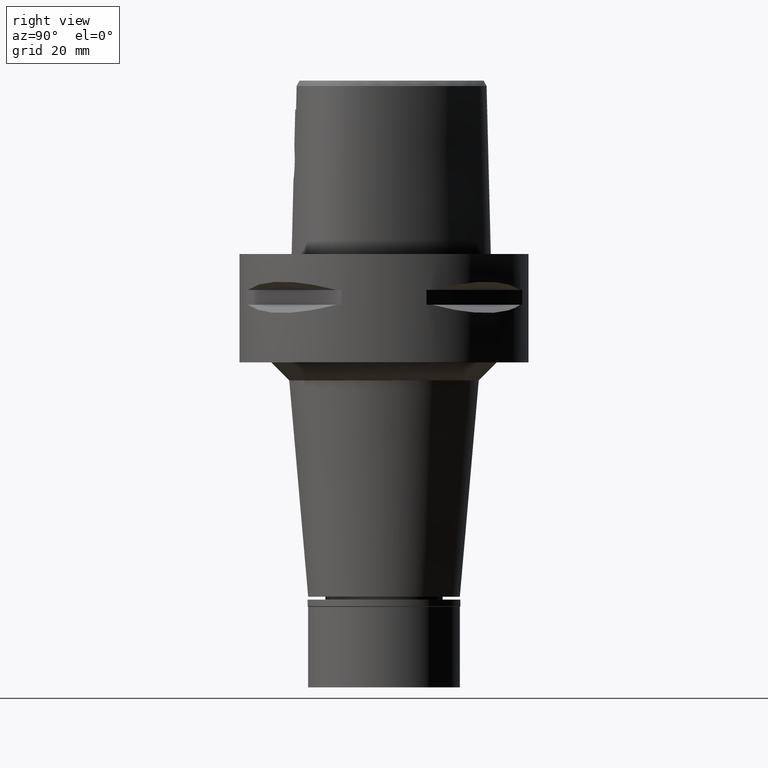
[diagram: clean part render]
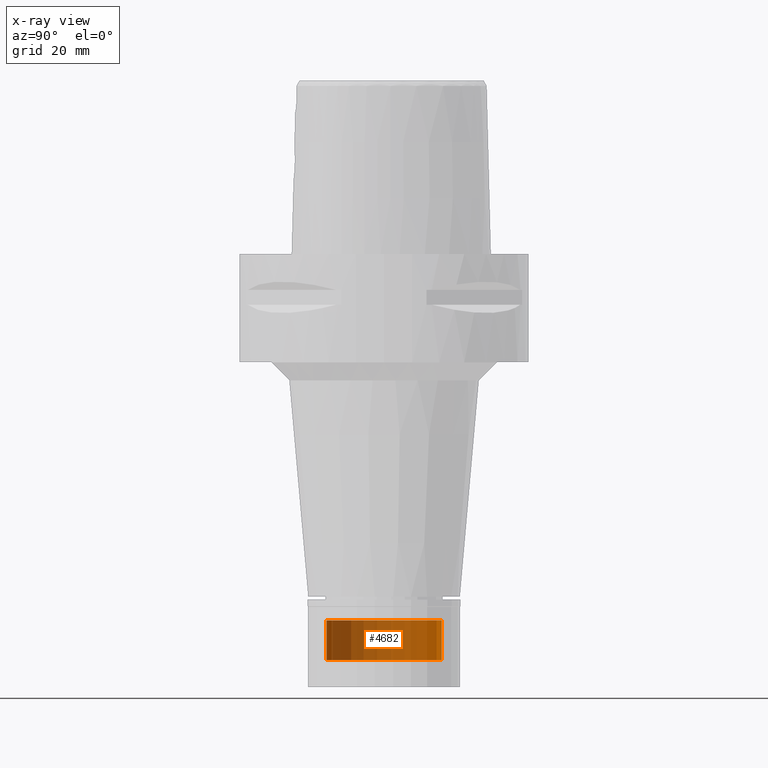
[diagram: x-ray — body ghosted, one internal face saturated and labeled with its STEP entity id]
A machine part, right view, then the same camera in x-ray: the body is ghosted and one INTERNAL B-rep face — a face not visible from any outside direction — is saturated and labeled: STEP entity #4682.
In plain terms, the highlighted cylindrical surface (partial cylindrical patch) has radius 16 mm, axis along (0, 0, -1).
Its self-contained STEP definition (entity closure, byte-faithful):
#69 = DIRECTION ( 'NONE',  ( 0.0000000000000000000, 1.000000000000000000, 0.0000000000000000000 ) ) ;
#88 = CARTESIAN_POINT ( 'NONE',  ( 0.0000000000000000000, 16.00000000000000000, -101.5000000000000000 ) ) ;
#223 = DIRECTION ( 'NONE',  ( 0.0000000000000000000, 0.0000000000000000000, -1.000000000000000000 ) ) ;
#253 = DIRECTION ( 'NONE',  ( 0.0000000000000000000, -1.000000000000000000, 0.0000000000000000000 ) ) ;
#389 = CARTESIAN_POINT ( 'NONE',  ( 0.0000000000000000000, -16.00000000000000000, -101.5000000000000000 ) ) ;
#452 = VERTEX_POINT ( 'NONE', #701 ) ;
#578 = EDGE_CURVE ( 'NONE', #3506, #4273, #1266, .T. ) ;
#579 = EDGE_CURVE ( 'NONE', #3506, #452, #4788, .T. ) ;
#586 = CARTESIAN_POINT ( 'NONE',  ( 0.0000000000000000000, 16.00000000000000000, -101.5000000000000000 ) ) ;
#701 = CARTESIAN_POINT ( 'NONE',  ( 0.0000000000000000000, -16.00000000000000000, -112.5000000000000000 ) ) ;
#772 = ORIENTED_EDGE ( 'NONE', *, *, #578, .T. ) ;
#893 = EDGE_CURVE ( 'NONE', #4273, #1788, #2064, .T. ) ;
#1086 = AXIS2_PLACEMENT_3D ( 'NONE', #1212, #1623, #69 ) ;
#1212 = CARTESIAN_POINT ( 'NONE',  ( 0.0000000000000000000, 1.293533181598999990E-14, -112.5000000000000000 ) ) ;
#1266 = CIRCLE ( 'NONE', #1343, 16.00000000000000000 ) ;
#1343 = AXIS2_PLACEMENT_3D ( 'NONE', #3799, #223, #253 ) ;
#1368 = DIRECTION ( 'NONE',  ( 0.0000000000000000000, -1.000000000000000000, 0.0000000000000000000 ) ) ;
#1400 = ORIENTED_EDGE ( 'NONE', *, *, #4967, .T. ) ;
#1517 = DIRECTION ( 'NONE',  ( 0.0000000000000000000, 0.0000000000000000000, -1.000000000000000000 ) ) ;
#1623 = DIRECTION ( 'NONE',  ( 0.0000000000000000000, 0.0000000000000000000, 1.000000000000000000 ) ) ;
#1733 = DIRECTION ( 'NONE',  ( 0.0000000000000000000, 0.0000000000000000000, -1.000000000000000000 ) ) ;
#1784 = ORIENTED_EDGE ( 'NONE', *, *, #579, .F. ) ;
#1788 = VERTEX_POINT ( 'NONE', #2143 ) ;
#2064 = LINE ( 'NONE', #88, #3596 ) ;
#2143 = CARTESIAN_POINT ( 'NONE',  ( 0.0000000000000000000, 16.00000000000000000, -112.5000000000000000 ) ) ;
#2595 = CARTESIAN_POINT ( 'NONE',  ( 0.0000000000000000000, -16.00000000000000000, -101.5000000000000000 ) ) ;
#2603 = CYLINDRICAL_SURFACE ( 'NONE', #4573, 16.00000000000000000 ) ;
#2934 = DIRECTION ( 'NONE',  ( 0.0000000000000000000, 0.0000000000000000000, -1.000000000000000000 ) ) ;
#2986 = FACE_OUTER_BOUND ( 'NONE', #3089, .T. ) ;
#3012 = CARTESIAN_POINT ( 'NONE',  ( 0.0000000000000000000, 1.293533181598999990E-14, 5.625000000000000000 ) ) ;
#3089 = EDGE_LOOP ( 'NONE', ( #1400, #1784, #772, #4012 ) ) ;
#3506 = VERTEX_POINT ( 'NONE', #2595 ) ;
#3585 = CIRCLE ( 'NONE', #1086, 16.00000000000000000 ) ;
#3596 = VECTOR ( 'NONE', #1733, 1000.000000000000000 ) ;
#3799 = CARTESIAN_POINT ( 'NONE',  ( 0.0000000000000000000, 1.293533181598999990E-14, -101.5000000000000000 ) ) ;
#3842 = VECTOR ( 'NONE', #1517, 1000.000000000000000 ) ;
#4012 = ORIENTED_EDGE ( 'NONE', *, *, #893, .T. ) ;
#4273 = VERTEX_POINT ( 'NONE', #586 ) ;
#4573 = AXIS2_PLACEMENT_3D ( 'NONE', #3012, #2934, #1368 ) ;
#4682 = ADVANCED_FACE ( 'NONE', ( #2986 ), #2603, .T. ) ;
#4788 = LINE ( 'NONE', #389, #3842 ) ;
#4967 = EDGE_CURVE ( 'NONE', #1788, #452, #3585, .T. ) ;